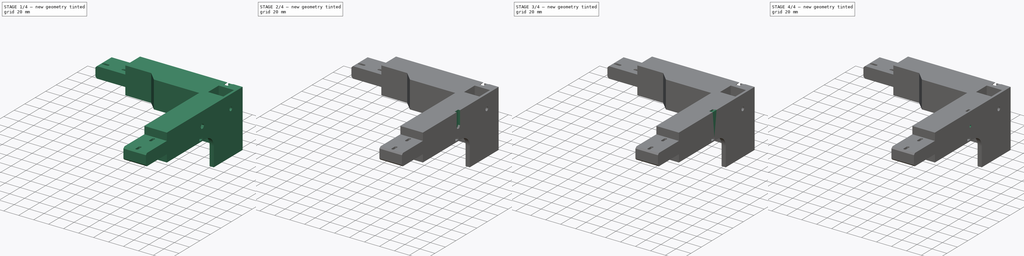
[diagram: build sequence overview — one tinted view per stage of 4, left to right]
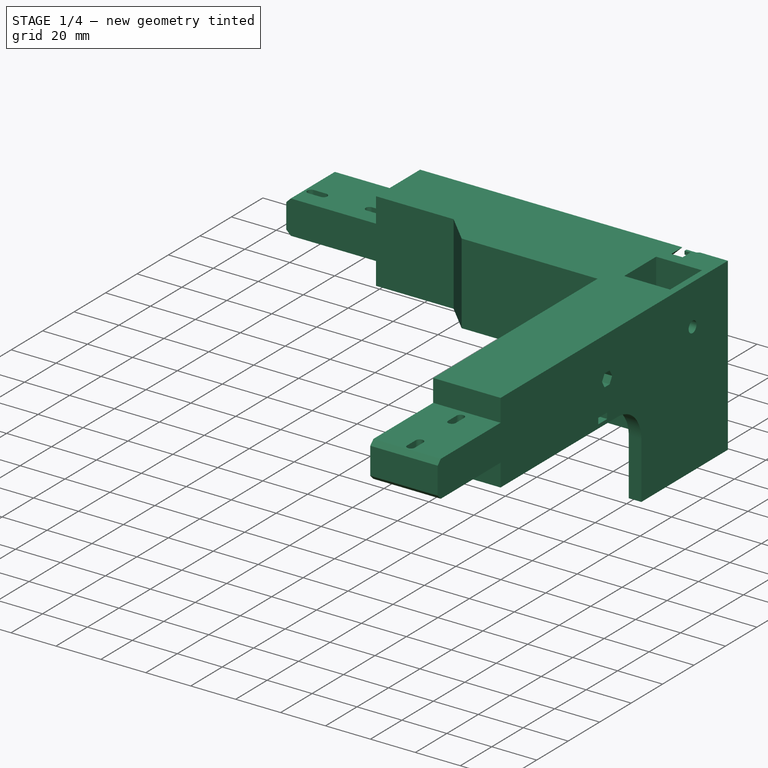
[diagram: stage 1 of 4 — iso view after this stage's code; geometry added in this stage tinted green]
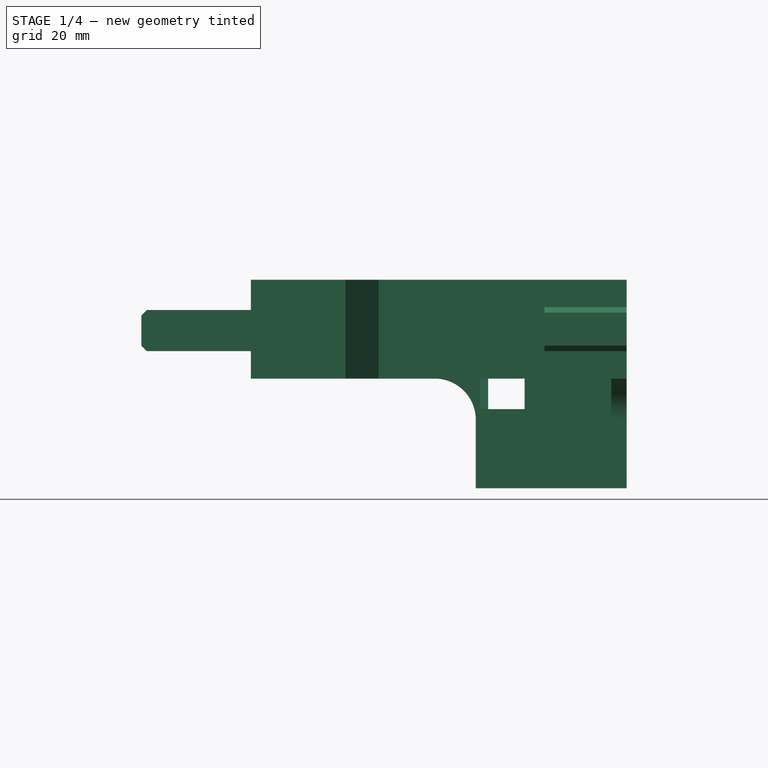
[diagram: stage 1 of 4 — front view after this stage's code; geometry added in this stage tinted green]
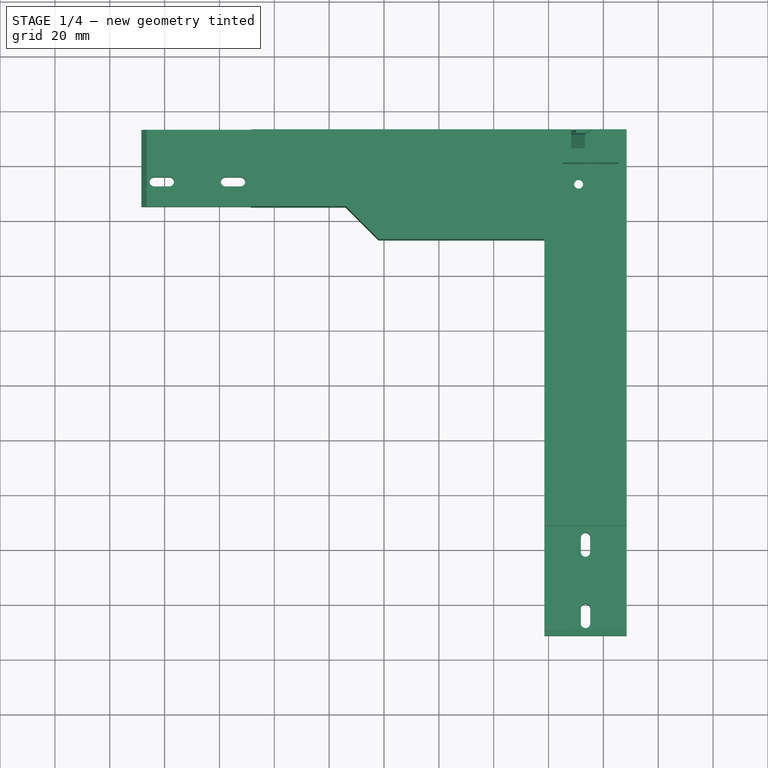
[diagram: stage 1 of 4 — top view after this stage's code; geometry added in this stage tinted green]
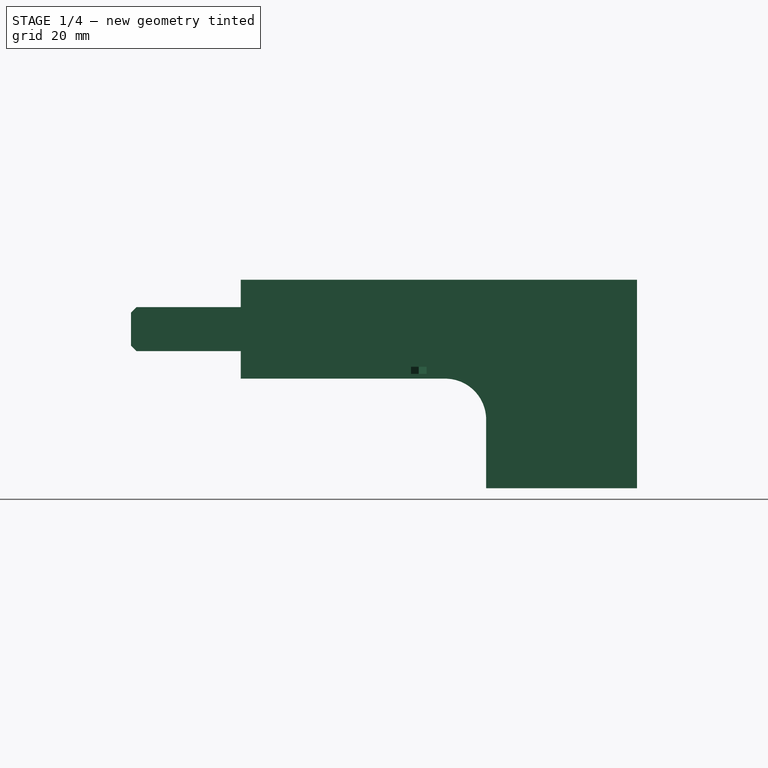
[diagram: stage 1 of 4 — right view after this stage's code; geometry added in this stage tinted green]
FCSTD DOCUMENT  (FreeCAD 2024.1R35694 (Git))
Label: Rear_right_bottom_frame
License: All rights reserved
LicenseURL: http://en.wikipedia.org/wiki/All_rights_reserved
objects: PartDesign::Pocket×7, PartDesign::Pad×5, Sketcher::SketchObject×4, Part::Feature×1, PartDesign::FeatureBase×1, PartDesign::Body×1
note: 31 computed .brp shape members not serialized (recipe doc carries the construction recipe); baked Part::Feature solids carry a one-line shape summary decoded from their .brp

FEATURE [Part::Feature] Pocket007  label="Rear_right_bottom_frame"
  shape: bbox 177 x 184.5 x 77.49 mm, 126 faces (baked)
FEATURE [PartDesign::FeatureBase] BaseFeature
  BaseFeature = -> Pocket007
FEATURE [PartDesign::Pocket] Pocket
  BaseFeature = -> BaseFeature
  Direction = (0,0,6660)
  Length = 0.3
  Length2 = 5
  Profile = -> BaseFeature [Face79]
  Refine = true
  Type = 0
FEATURE [PartDesign::Pocket] Pocket008
  BaseFeature = -> Pocket
  Direction = (0,0,6660)
  Length = 0.3
  Length2 = 5
  Profile = -> Pocket [Face65]
  Refine = true
  Type = 0
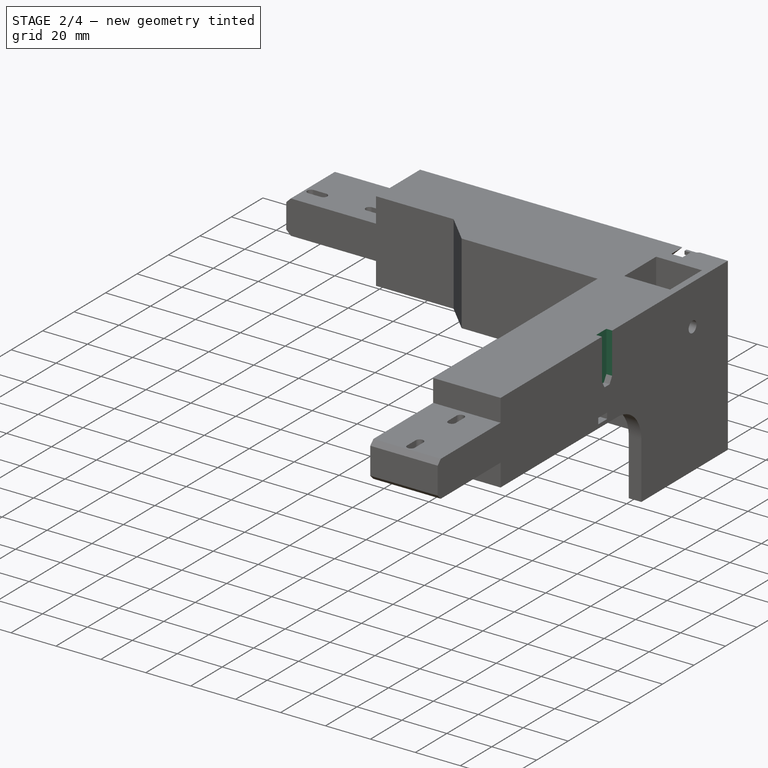
[diagram: stage 2 of 4 — iso view after this stage's code; geometry added in this stage tinted green]
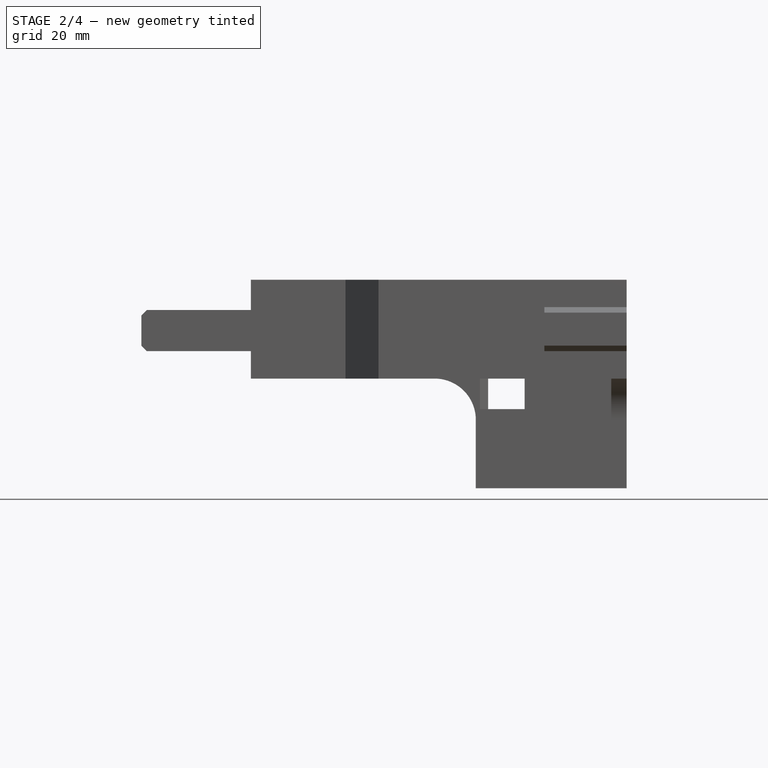
[diagram: stage 2 of 4 — front view after this stage's code; geometry added in this stage tinted green]
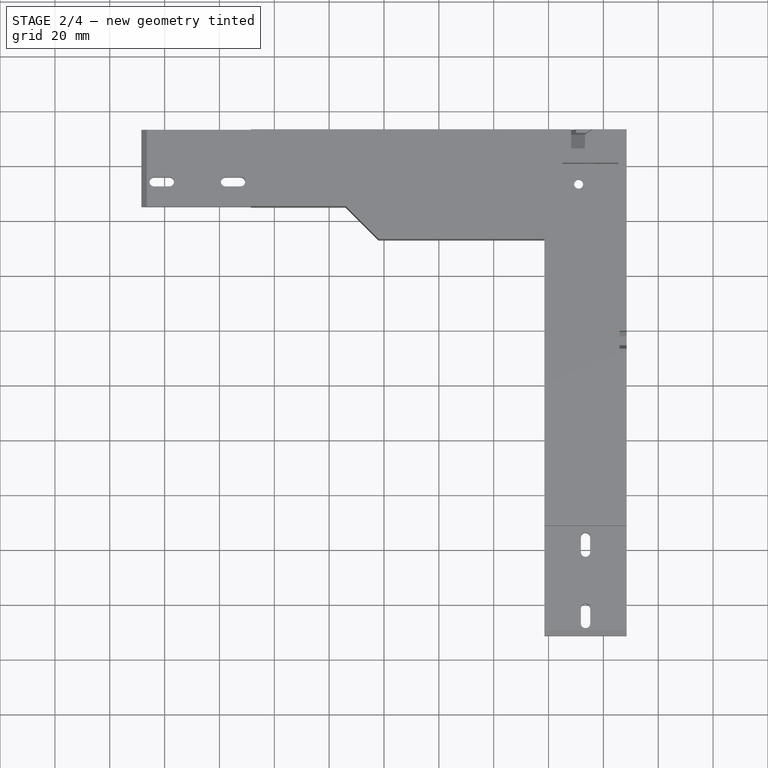
[diagram: stage 2 of 4 — top view after this stage's code; geometry added in this stage tinted green]
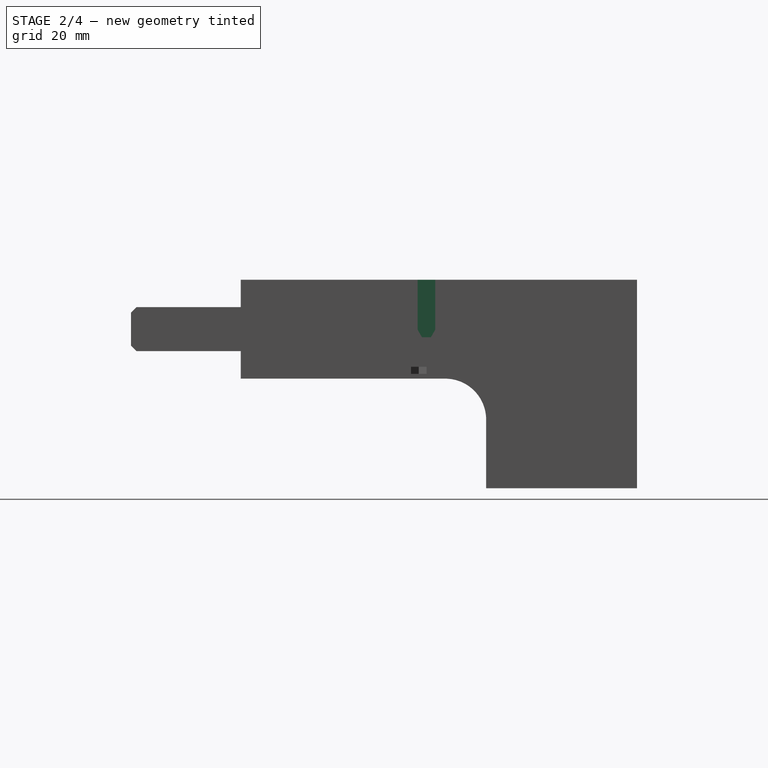
[diagram: stage 2 of 4 — right view after this stage's code; geometry added in this stage tinted green]
FEATURE [PartDesign::Pad] Pad
  BaseFeature = -> Pocket008
  Direction = (0,0,-5259.36)
  Length = 5.7
  Length2 = 10
  Profile = -> Pocket008 [Face134]
  Refine = true
  Type = 0
FEATURE [PartDesign::Pocket] Pocket009
  BaseFeature = -> Pad
  Direction = (0,0,8.061)
  Length = 5
  Length2 = 5
  Profile = -> Pad [Face87,Face86,Face88]
  Refine = true
  Type = 1
  UseCustomVector = true
FEATURE [PartDesign::Pad] Pad001
  BaseFeature = -> Pocket009
  Direction = (1,0,0)
  Length = 2.4
  Length2 = 10
  Profile = -> Pocket009 [Face133,Face126]
  Refine = true
  Type = 0
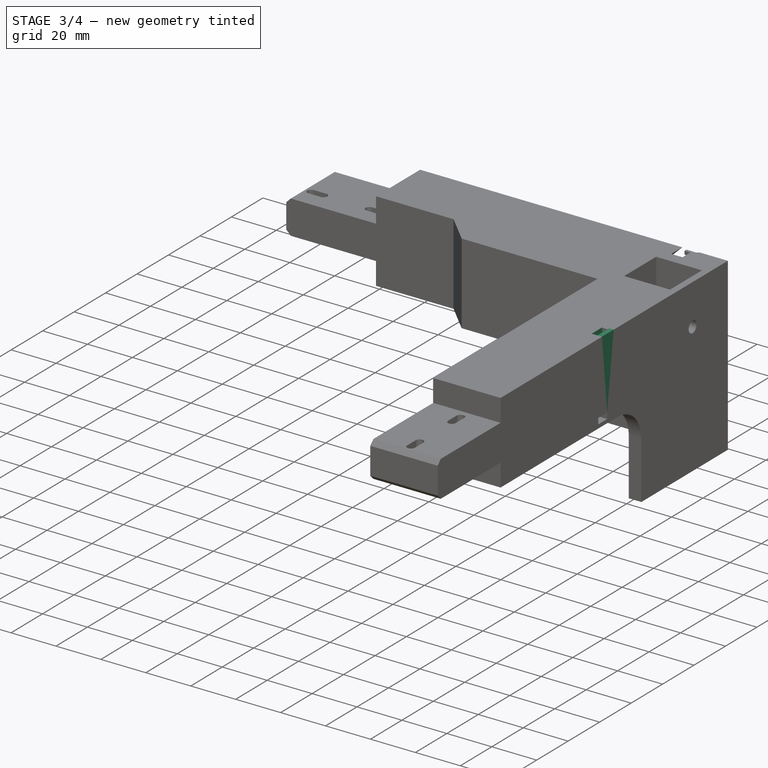
[diagram: stage 3 of 4 — iso view after this stage's code; geometry added in this stage tinted green]
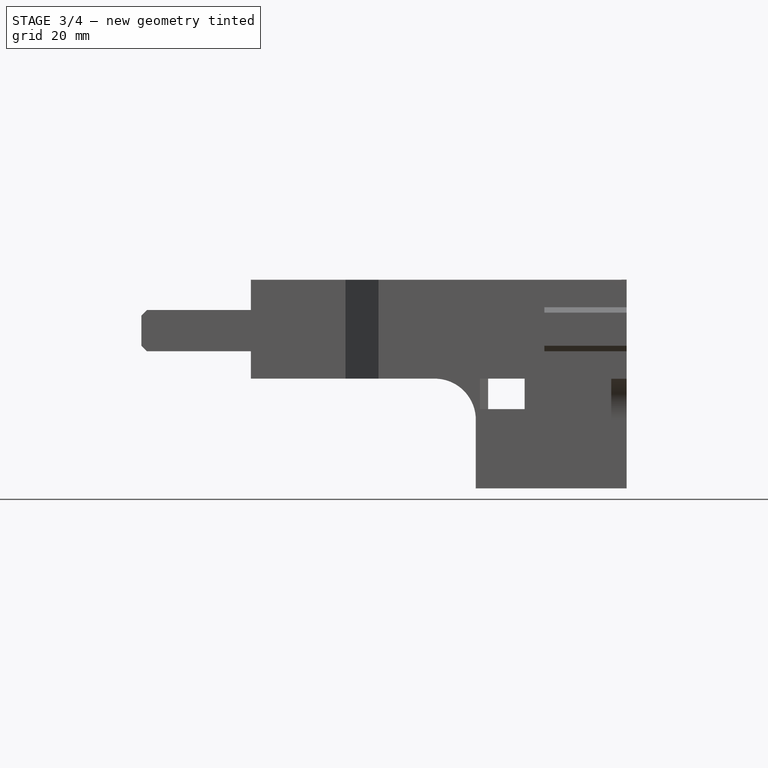
[diagram: stage 3 of 4 — front view after this stage's code; geometry added in this stage tinted green]
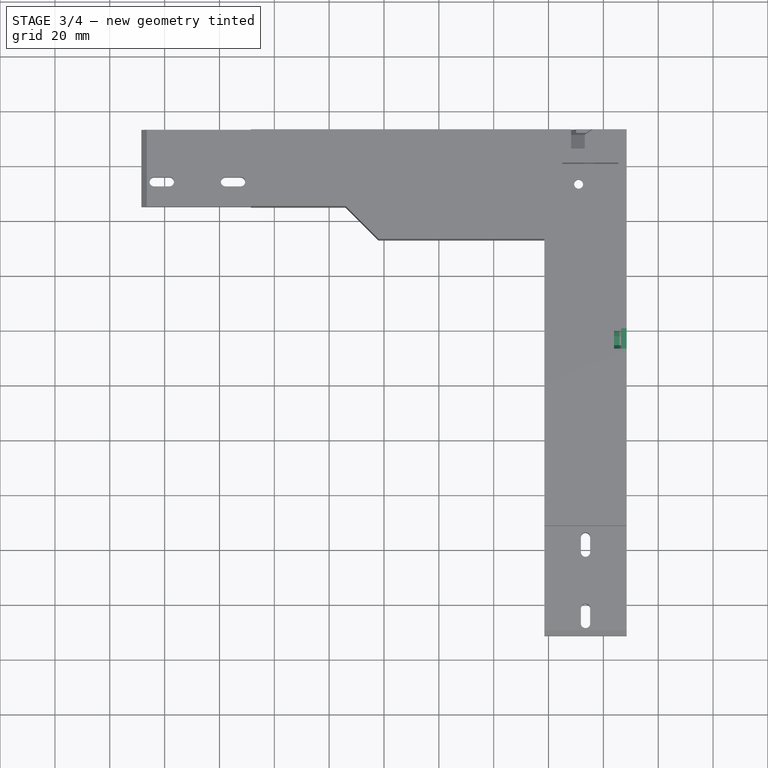
[diagram: stage 3 of 4 — top view after this stage's code; geometry added in this stage tinted green]
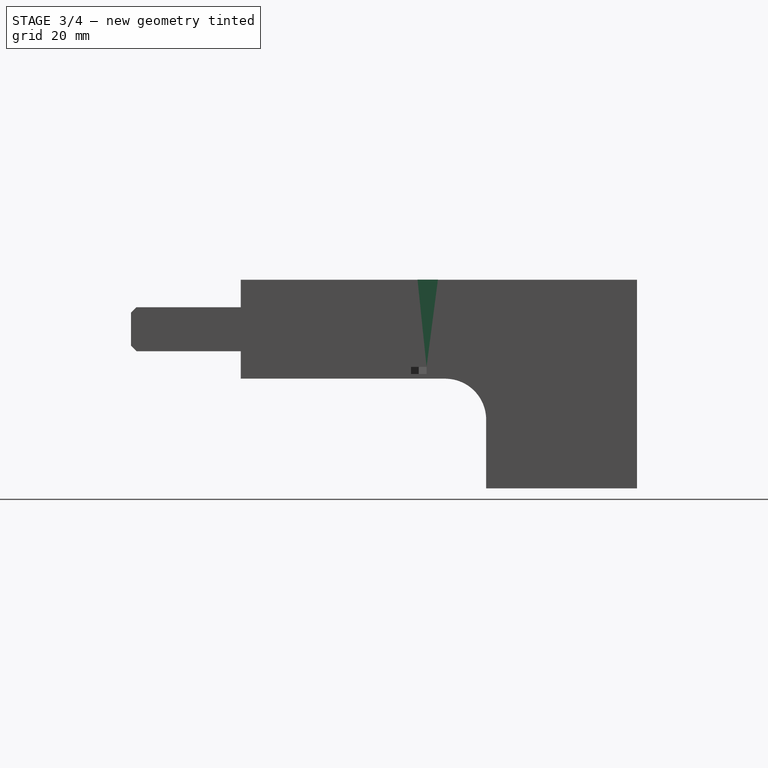
[diagram: stage 3 of 4 — right view after this stage's code; geometry added in this stage tinted green]
FEATURE [Sketcher::SketchObject] Sketch
  FullyConstrained = false
  MapMode = 5
  Placement = pos=(83.4796,0,0) rot=(0.57735,0.57735,0.57735;2.0944rad)
  Support = -> [Pad001]
  sketch-geometry (1):
    g0: Circle CenterX=15.4752 CenterY=19.8347 CenterZ=0 NormalX=0 NormalY=0 NormalZ=1 AngleXU=0 Radius=1.5
  constraints (1):
    c: Diameter(g0) = 3
FEATURE [PartDesign::Pocket] Pocket010
  BaseFeature = -> Pad001
  Direction = (-36.0177,0,0)
  Length = 2
  Length2 = 5
  Profile = -> Pad001 [Face130,Face129]
  Refine = true
  Type = 0
FEATURE [Sketcher::SketchObject] Sketch001
  FullyConstrained = false
  MapMode = 5
  Placement = pos=(88.4796,0,0) rot=(0.57735,0.57735,0.57735;2.0944rad)
  Support = -> [Pocket010]
  sketch-geometry (4):
    g0: LineSegment StartX=19.6557 StartY=16.3036 StartZ=0 EndX=19.6557 EndY=38.0565 EndZ=0
    g1: LineSegment StartX=19.6557 StartY=38.0565 StartZ=0 EndX=12.2271 EndY=38.0565 EndZ=0
    g2: LineSegment StartX=12.2271 StartY=38.0565 StartZ=0 EndX=12.2271 EndY=16.3036 EndZ=0
    g3: LineSegment StartX=12.2271 StartY=16.3036 StartZ=0 EndX=19.6557 EndY=16.3036 EndZ=0
  constraints (8):
    c: Coincident(g0,g1)
    c: Coincident(g1,g2)
    c: Coincident(g2,g3)
    c: Coincident(g3,g0)
    c: Vertical(g0)
    c: Vertical(g2)
    c: Horizontal(g1)
    c: Horizontal(g3)
FEATURE [PartDesign::Pad] Pad002
  BaseFeature = -> Pocket010
  Direction = (1,0,0)
  Length = 2
  Length2 = 10
  Profile = -> Sketch001
  ReferenceAxis = -> Sketch001 [N_Axis]
  Refine = true
  Reversed = true
  Type = 0
FEATURE [Sketcher::SketchObject] Sketch002
  FullyConstrained = false
  MapMode = 5
  Placement = pos=(88.4796,0,0) rot=(0.57735,0.57735,0.57735;2.0944rad)
  Support = -> [Pad002]
  sketch-geometry (4):
    g0: LineSegment StartX=-105.53 StartY=54.1638 StartZ=0 EndX=-105.53 EndY=-49.3928 EndZ=0
    g1: LineSegment StartX=-105.53 StartY=-49.3928 StartZ=0 EndX=115.936 EndY=-49.3928 EndZ=0
    g2: LineSegment StartX=115.936 StartY=-49.3928 StartZ=0 EndX=115.936 EndY=54.1638 EndZ=0
    g3: LineSegment StartX=115.936 StartY=54.1638 StartZ=0 EndX=-105.53 EndY=54.1638 EndZ=0
  constraints (8):
    c: Coincident(g0,g1)
    c: Coincident(g1,g2)
    c: Coincident(g2,g3)
    c: Coincident(g3,g0)
    c: Vertical(g0)
    c: Vertical(g2)
    c: Horizontal(g1)
    c: Horizontal(g3)
FEATURE [PartDesign::Pad] Pad003
  BaseFeature = -> Pad002
  Direction = (1,0,0)
  Length = 10
  Length2 = 10
  Profile = -> Sketch002
  ReferenceAxis = -> Sketch002 [N_Axis]
  Refine = true
  Type = 0
FEATURE [PartDesign::Pocket] Pocket011
  BaseFeature = -> Pad003
  Direction = (-1,0,0)
  Length = 10
  Length2 = 5
  Profile = -> Pad003 [Face5]
  Refine = true
  Type = 0
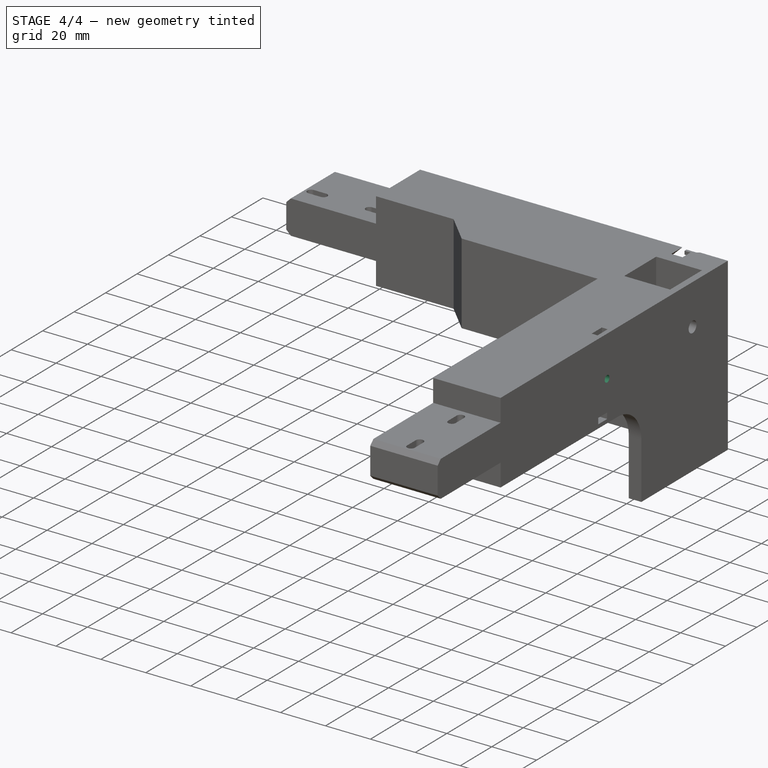
[diagram: stage 4 of 4 — iso view after this stage's code; geometry added in this stage tinted green]
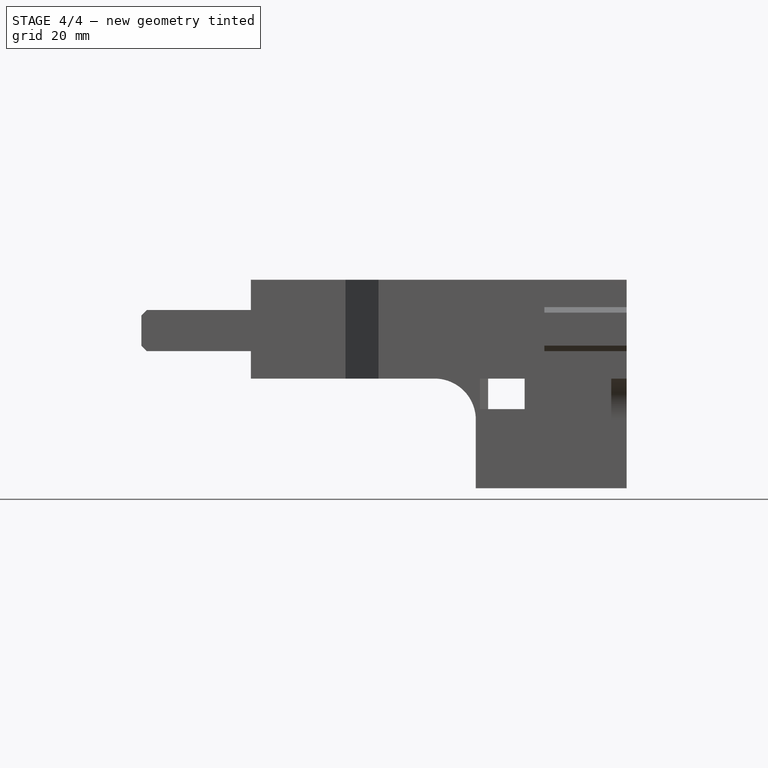
[diagram: stage 4 of 4 — front view after this stage's code; geometry added in this stage tinted green]
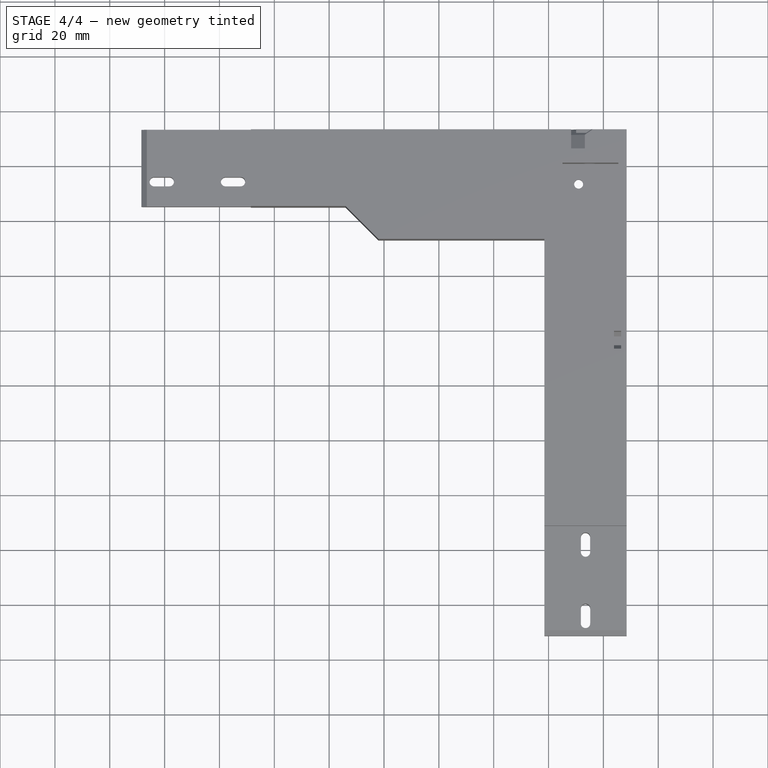
[diagram: stage 4 of 4 — top view after this stage's code; geometry added in this stage tinted green]
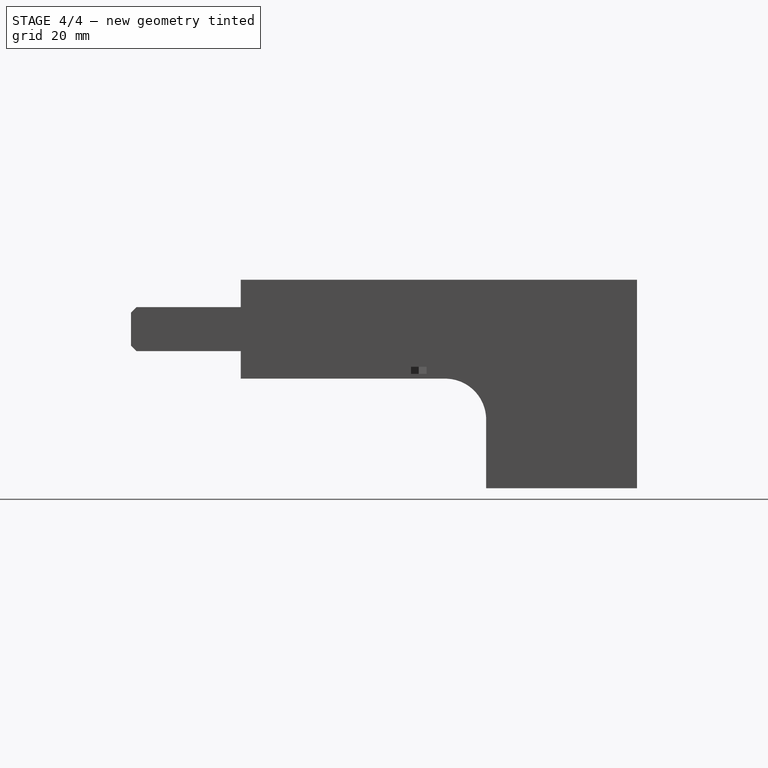
[diagram: stage 4 of 4 — right view after this stage's code; geometry added in this stage tinted green]
FEATURE [Sketcher::SketchObject] Sketch003
  FullyConstrained = false
  MapMode = 5
  Placement = pos=(-1.28e-14,1.22e-14,38.0248) rot=(0,0,1;0rad)
  Support = -> [Pocket011]
  sketch-geometry (4):
    g0: LineSegment StartX=-113.134 StartY=113.443 StartZ=0 EndX=-113.134 EndY=-101.978 EndZ=0
    g1: LineSegment StartX=-113.134 StartY=-101.978 StartZ=0 EndX=127.895 EndY=-101.978 EndZ=0
    g2: LineSegment StartX=127.895 StartY=-101.978 StartZ=0 EndX=127.895 EndY=113.443 EndZ=0
    g3: LineSegment StartX=127.895 StartY=113.443 StartZ=0 EndX=-113.134 EndY=113.443 EndZ=0
  constraints (8):
    c: Coincident(g0,g1)
    c: Coincident(g1,g2)
    c: Coincident(g2,g3)
    c: Coincident(g3,g0)
    c: Vertical(g0)
    c: Vertical(g2)
    c: Horizontal(g1)
    c: Horizontal(g3)
FEATURE [PartDesign::Pad] Pad004
  BaseFeature = -> Pocket011
  Direction = (0,0,1)
  Length = 10
  Length2 = 10
  Profile = -> Sketch003
  ReferenceAxis = -> Sketch003 [N_Axis]
  Refine = true
  Type = 0
FEATURE [PartDesign::Pocket] Pocket012
  BaseFeature = -> Pad004
  Direction = (0,0,-1)
  Length = 10
  Length2 = 5
  Profile = -> Pad004 [Face106]
  Refine = true
  Type = 0
FEATURE [PartDesign::Pocket] Pocket013
  BaseFeature = -> Pocket012
  Direction = (-1,0,0)
  Length = 5
  Length2 = 5
  Profile = -> Sketch
  ReferenceAxis = -> Sketch [N_Axis]
  Refine = true
  Reversed = true
  Type = 0
FEATURE [PartDesign::Body] Body
  BaseFeature = -> Pocket007
  Group = -> [BaseFeature,Pocket,Pocket008,Pad,Pocket009,Pad001,Sketch,Pocket010,Sketch001,Pad002,Sketch002,Pad003,Pocket011,Sketch003,Pad004,Pocket012,Pocket013]
  Origin = -> Origin
  Tip = -> Pocket013
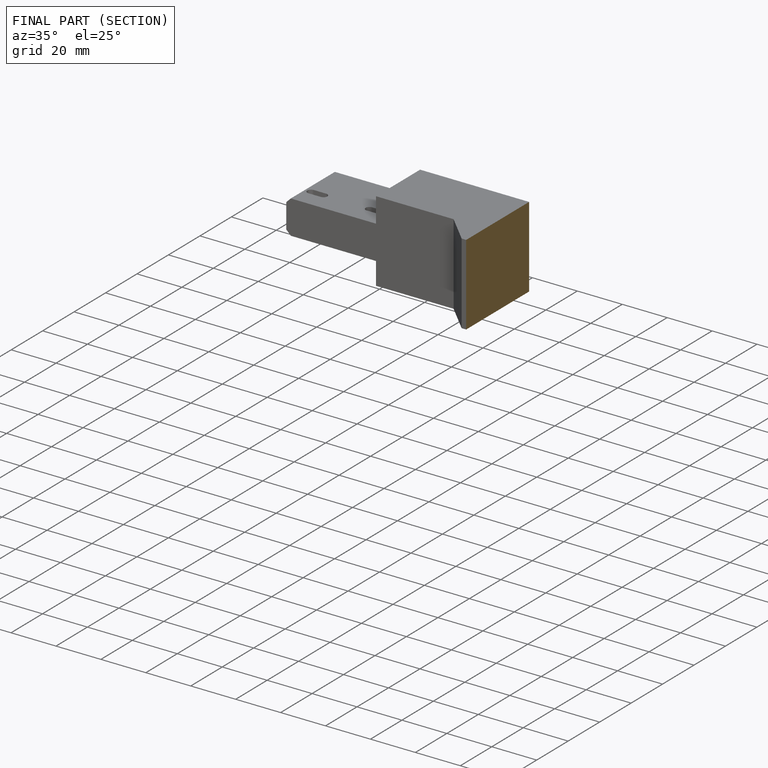
[diagram: finished part — half-section view (interior)]
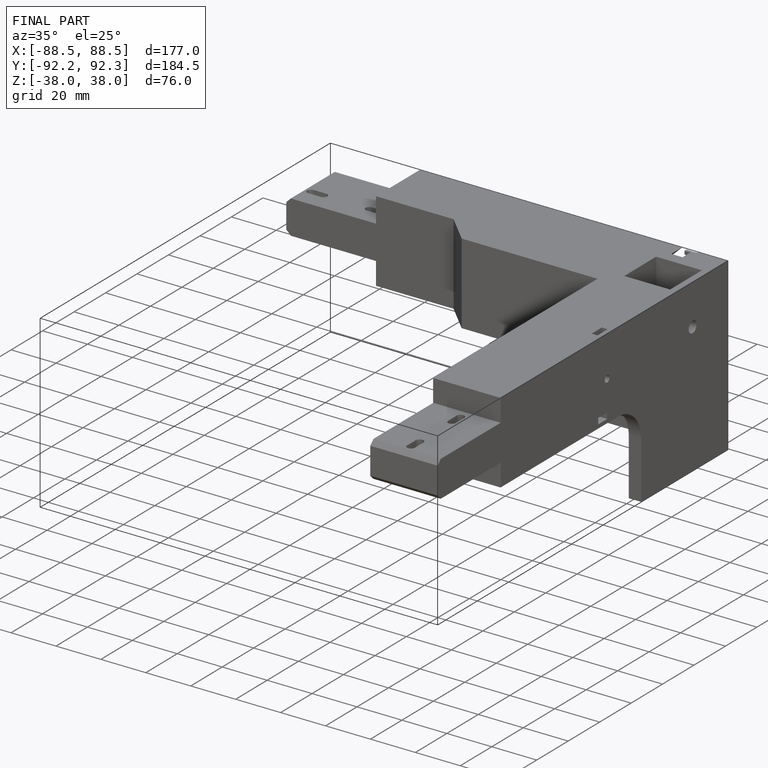
[diagram: finished part — iso view with bounding-box wireframe]
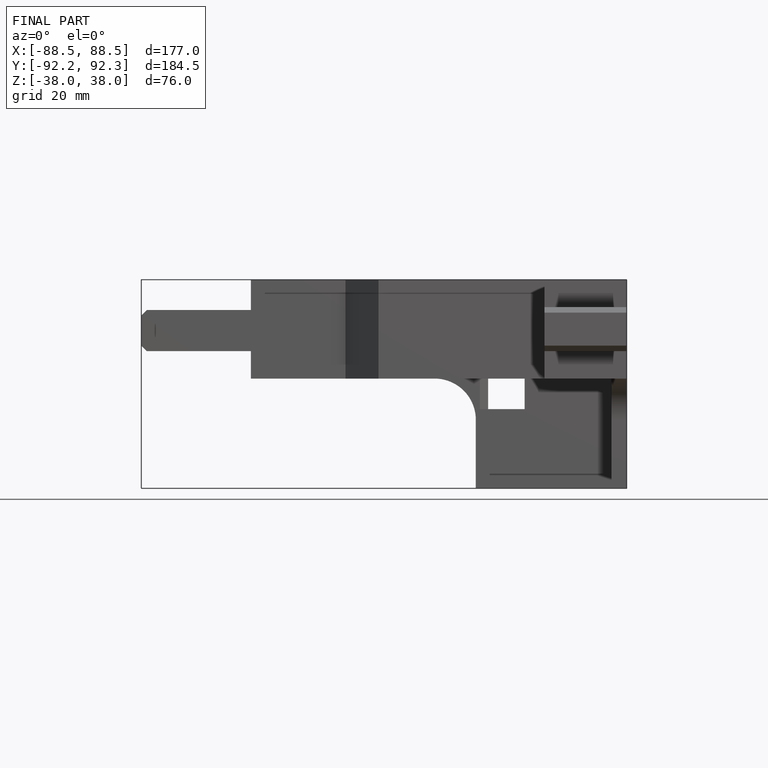
[diagram: finished part — front view with bounding-box wireframe]
